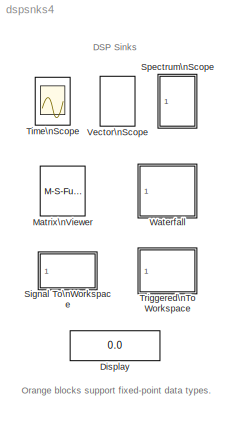
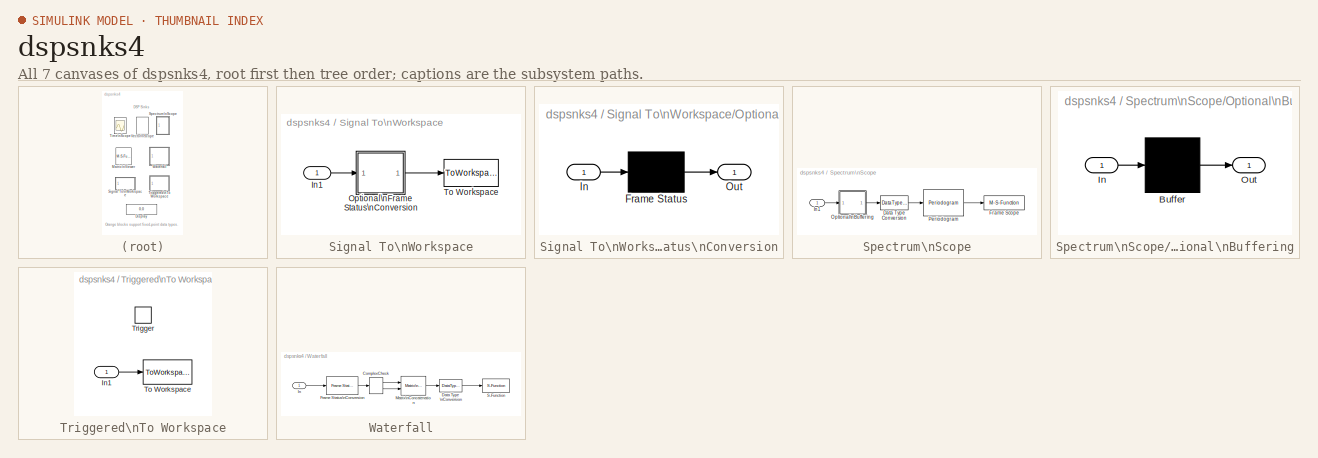
[diagram: thumbnail index - all 7 canvases of the model, root first then tree order]
MODEL dspsnks4
KIND library
BLOCK [Display] Display
  CopyFcn = dspfixptcopycallback
  Decimation = 1
  Ports = [1]
BLOCK [M-S-Function] Matrix\nViewer
  CopyFcn = sdspmview2([],[],[],'BlockCopy');\ndspfixptcopycallback;
  DeleteFcn = sdspmview2([],[],[],'BlockDelete');\ndspblkDDClose;
  MFile = sdspmview2
  MaskCallbackString = ||||||||||||
  MaskDescription = Display a matrix as an image, scaling the colormap to the specified input data range.  Colormap must be an Nx3 matrix of RGB values.  Type \"help graph3d\" at the MATLAB prompt for a list of predefined colormaps.
  MaskDisplay = disp('Matrix\\nViewer')
  MaskEnableString = off,on,on,on,on,on,on,on,on,on,on,on,on
  MaskHelp = web(dspbhelp);
  MaskIconFrame = on
  MaskIconOpaque = on
  MaskIconRotate = none
  MaskIconUnits = autoscale
  MaskInitialization = CMap = CMapStr;\ns = dspblkmview2(ImageParams, CMap, YMin, YMax, AxisColorbar, AxisParams,  AxisOrigin, XLabel,  YLabel,  ZLabel, FigPos, AxisZoom);
  MaskPromptString = dummy|-------------------------------- Show Image properties ------------------------------------|Colormap matrix:|Minimum input value:|Maximum input value:|Display colorbar|-------------------------------- Show axis properties ----------------------------------------|Axis origin:|X-axis title:|Y-axis title:|Colorbar title:|Figure position:|Axis zoom
  MaskSelfModifiable = on
  MaskStyleString = checkbox,checkbox,edit,edit,edit,checkbox,checkbox,popup(Upper left corner|Lower left corner),edit,edit,edit,edit,checkbox
  MaskTabNameString = ,,,,,,,,,,,,
  MaskToolTipString = on,on,on,on,on,on,on,on,on,on,on,on,on
  MaskTunableValueString = on,on,on,on,on,on,on,on,on,on,on,on,on
  MaskType = Matrix Viewer
  MaskValueString = off|off|hot(256)|-1.0|1.0|on|off|Upper left corner|X-axis|Y-axis|Z-axis|get(0,'defaultfigureposition')|off
  MaskVarAliasString = ,,,,,,,,,,,,
  MaskVariables = ShowPortLabels=&1;ImageParams=&2;CMapStr=&3;YMin=@4;YMax=@5;AxisColorbar=&6;AxisParams=&7;AxisOrigin=&8;XLabel=&9;YLabel=&10;ZLabel=&11;FigPos=@12;AxisZoom=&13;
  MaskVisibilityString = off,on,off,off,off,off,on,off,off,off,off,off,off
  NameChangeFcn = sdspmview2([],[],[],'BlockNameChange');
  OpenFcn = dspblkDDOpen('MatrixViewer');
  Ports = [1]
BLOCK [SubSystem] Signal To\nWorkspace
  CopyFcn = dspfixptcopycallback;\ndspblkcopystw(gcbh);
  EnableExecutionContextPropagation = on
  MaskCallbackString = ||||
  MaskDescription = Write input to specified array in MATLAB's main workspace.  Data is not available until the simulation is stopped or paused.
  MaskDisplay = disp(VariableName)
  MaskEnableString = on,on,on,on,on
  MaskHelp = web(dspbhelp);\n
  MaskIconFrame = on
  MaskIconOpaque = on
  MaskIconRotate = none
  MaskIconUnits = autoscale
  MaskInitialization = ConcatFrames = dspblkstw2(FrameMode);\n
  MaskPromptString = Variable name:|Limit data points to last:|Decimation:|Frames:|Log fixed-point data as a fi object
  MaskSelfModifiable = on
  MaskStyleString = edit,edit,edit,popup(Concatenate frames (2-D array)|Log frames separately (3-D array)),checkbox
  MaskTabNameString = ,,,,
  MaskToolTipString = on,on,on,on,on
  MaskTunableValueString = off,off,off,off,off
  MaskType = Signal To Workspace
  MaskValueString = yout|inf|1|Concatenate frames (2-D array)|off
  MaskVarAliasString = ,,,,
  MaskVariables = VariableName=&1;MaxDataPoints=@2;Decimation=@3;FrameMode=@4;FixptAsFi=@5;
  MaskVisibilityString = on,on,on,on,on
  MinAlgLoopOccurrences = off
  Ports = [1]
  TreatAsAtomicUnit = off
BLOCK [Inport] Signal To\nWorkspace/In1
  IconDisplay = Port number
  LatchInput = off
BLOCK [SubSystem] Signal To\nWorkspace/Optional\nFrame Status\nConversion
  EnableExecutionContextPropagation = on
  MaskCallbackString = |||
  MaskDescription = Configurable subsystem holding blocks which may be replaced by virtual short-circuits (muxes) when not needed.
  MaskEnableString = on,on,on,on
  MaskHelp = \n
  MaskIconFrame = on
  MaskIconOpaque = on
  MaskIconRotate = none
  MaskIconUnits = autoscale
  MaskInitialization = opts.name = oname; opts.src = osrc; opts.args = oargs;\ndspskipblk(gcb,opts,replace);\n
  MaskPromptString = Relative name of blocks to replace:|Simulink path to each source block:|Parameter/value pairs to each block:|Replace with short-circuit:
  MaskSelfModifiable = on
  MaskStyleString = edit,edit,edit,edit
  MaskTabNameString = ,,,
  MaskToolTipString = on,on,on,on
  MaskTunableValueString = off,off,off,off
  MaskType = Replaceable Contents
  MaskValueString = Frame Status|dspsigattribs/Frame Status Conversion|{'outframe','Sample-based','growRefPort','off'}|ConcatFrames
  MaskVarAliasString = ,,,
  MaskVariables = oname=&1;osrc=&2;oargs=@3;replace=@4;
  MaskVisibilityString = on,on,on,on
  MinAlgLoopOccurrences = off
  Ports = [1, 1]
  TreatAsAtomicUnit = off
BLOCK [Mux] Signal To\nWorkspace/Optional\nFrame Status\nConversion/Frame Status
  Inputs = 1
  Ports = [1, 1]
BLOCK [Inport] Signal To\nWorkspace/Optional\nFrame Status\nConversion/In
  IconDisplay = Port number
  LatchInput = off
BLOCK [Outport] Signal To\nWorkspace/Optional\nFrame Status\nConversion/Out
  BusOutputAsStruct = off
  IconDisplay = Port number
  InitialOutput = 0
BLOCK [ToWorkspace] Signal To\nWorkspace/To Workspace
  Decimation = Decimation
  MaxDataPoints = MaxDataPoints
  SampleTime = -1
  SaveFormat = Array
  VariableName = yout
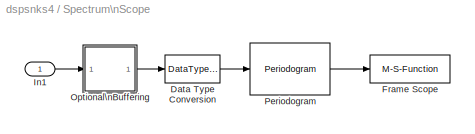
BLOCK [SubSystem] Spectrum\nScope
  CopyFcn = sdspfscope2([],[],[],'BlockCopy');\ndspfixptcopycallback
  DeleteFcn = sdspfscope2([],[],[],'BlockDelete');\ndspblkDDClose;
  EnableExecutionContextPropagation = on
  MaskCallbackString = dspblkbfftscope2('dynamic','ScopeProperties')|||dspblkbfftscope2('dynamic','useBuffer');|||dspblkbfftscope2('dynamic','FftLenCheckbox');|||dspblkbfftscope2('dynamic','DisplayProperties');|||||||dspblkbfftscope2('dynamic','OpenScope');||dspblkbfftscope2('dynamic','AxisProperties');|||dspblkbfftscope2('dynamic','InheritXIncr');|||||||dspblkbfftscope2('dynamic','LineProperties');||||
  MaskDescription = Compute and display the periodogram of each input signal.  Non-frame based inputs to the block should use the buffering option.
  MaskDisplay = plot(x,y); text(14,20,str);\n
  MaskEnableString = on,on,on,on,on,on,on,on,on,on,on,on,on,on,on,on,on,on,on,on,on,on,off,on,on,on,on,on,on,on,on,on,on
  MaskHelp = web(dspbhelp);
  MaskIconFrame = on
  MaskIconOpaque = on
  MaskIconRotate = none
  MaskIconUnits = autoscale
  MaskInitialization = [x,y,str] = dspblkbfftscope2('icon');\ns = dspblkbfftscope2('init');
  MaskPromptString = -------------------------------- Show scope properties ------------------------------------|Input domain:|Time display span (number of frames):|Buffer input|Buffer size:|Buffer overlap:|Specify FFT length|FFT length:|Number of spectral averages:|-------------------------------- Show display properties -----------------------------------|Show grid|Persistence|Frame number|Channel legend|Compact dis...<+513ch>
  MaskSelfModifiable = on
  MaskStyleString = checkbox,popup(Time|Frequency|User-defined),edit,checkbox,edit,edit,checkbox,edit,edit,checkbox,checkbox,checkbox,checkbox,checkbox,checkbox,checkbox,checkbox,edit,checkbox,popup(Hertz|rad/sec),popup([0...Fs/2]|[-Fs/2...Fs/2]|[0...Fs]),checkbox,edit,edit,popup(Magnitude|dB),edit,edit,edit,checkbox,edit,edit,edit,edit
  MaskTabNameString = ,,,,,,,,,,,,,,,,,,,,,,,,,,,,,,,,
  MaskToolTipString = on,on,on,on,on,on,on,on,on,on,on,on,on,on,on,on,on,on,on,on,on,on,on,on,on,on,on,on,on,on,on,on,on
  MaskTunableValueString = on,on,off,off,off,off,off,off,off,on,on,on,on,on,on,on,on,on,on,on,on,on,on,on,on,on,on,on,on,on,on,on,on
  MaskType = Spectrum Scope
  MaskValueString = on|Frequency|1|off|128|64|off|128|2|off|on|off|on|off|off|on|off|get(0,'defaultfigureposition')|off|Hertz|[0...Fs/2]|on|1.0|Samples|dB|-10|10|Magnitude, dB|off||||
  MaskVarAliasString = ,,,,,,,,,,,,,,,,,,,,,,,,,,,,,,,,
  MaskVariables = ScopeProperties=&1;Domain=@2;HorizSpan=@3;UseBuffer=&4;BufferSize=@5;Overlap=@6;inpFftLenInherit=@7;FFTlength=@8;numAvg=@9;DisplayProperties=&10;AxisGrid=&11;Memory=&12;FrameNumber=&13;AxisLegend=&14;AxisZoom=&15;OpenScopeAtSimStart=&16;OpenScopeImmediately=&17;FigPos=@18;AxisProperties=&19;XUnits=@20;XRange=@21;InheritXIncr=&22;XIncr=@23;XLabel=&24;YUnits=@25;YMin=@26;YMax=@27;YLabel=&28;LineProp...<+74ch>
  MaskVisibilityString = on,off,off,on,off,off,on,off,on,on,off,off,off,off,off,off,off,off,on,off,off,off,off,off,off,off,off,off,on,off,off,off,off
  MinAlgLoopOccurrences = off
  NameChangeFcn = sdspfscope2([],[],[],'NameChange');
  OpenFcn = dspblkDDOpen('SpectrumScope');
  Ports = [1]
  RTWSystemCode = Function
  ShowPortLabels = off
  SimViewingDevice = on
  TreatAsAtomicUnit = on
BLOCK [DataTypeConversion] Spectrum\nScope/Data Type Conversion
  OutDataTypeMode = double
BLOCK [M-S-Function] Spectrum\nScope/Frame Scope
  CopyFcn = ;
  MFile = sdspfscope2
  MaskDescription = Level-2 M-file S-function for frame scope.
  MaskDisplay = disp('Frame\\nScope')
  MaskHelp = web(dspbhelp);
  MaskIconFrame = on
  MaskIconOpaque = on
  MaskIconRotate = none
  MaskIconUnits = autoscale
  MaskSelfModifiable = on
  MaskType = Frame Scope
  Parameters = 2
  Ports = [1]
BLOCK [Inport] Spectrum\nScope/In1
  IconDisplay = Port number
  LatchInput = off
BLOCK [SubSystem] Spectrum\nScope/Optional\nBuffering
  EnableExecutionContextPropagation = on
  MaskCallbackString = |||
  MaskDescription = Configurable subsystem holding blocks which may be replaced by virtual short-circuits (muxes) when not needed.
  MaskEnableString = on,on,on,on
  MaskHelp = \n
  MaskIconFrame = on
  MaskIconOpaque = on
  MaskIconRotate = none
  MaskIconUnits = autoscale
  MaskInitialization = opts.name = oname; opts.src = osrc; opts.args = oargs;\ndspskipblk(gcb,opts,replace);\n
  MaskPromptString = Relative name of blocks to replace:|Simulink path to each source block:|Parameter/value pairs to each block:|Replace with short-circuit:
  MaskSelfModifiable = on
  MaskStyleString = edit,edit,edit,edit
  MaskTabNameString = ,,,
  MaskToolTipString = on,on,on,on
  MaskTunableValueString = off,off,off,off
  MaskType = Replaceable Contents
  MaskValueString = Buffer|dspbuff3/Buffer|{'N','BufferSize','V','Overlap','ic','0'}|strcmp(UseBuffer,'off')
  MaskVarAliasString = ,,,
  MaskVariables = oname=&1;osrc=&2;oargs=@3;replace=@4;
  MaskVisibilityString = on,on,on,on
  MinAlgLoopOccurrences = off
  Ports = [1, 1]
  TreatAsAtomicUnit = off
BLOCK [Mux] Spectrum\nScope/Optional\nBuffering/Buffer
  Inputs = 1
  Ports = [1, 1]
BLOCK [Inport] Spectrum\nScope/Optional\nBuffering/In
  IconDisplay = Port number
  LatchInput = off
BLOCK [Outport] Spectrum\nScope/Optional\nBuffering/Out
  BusOutputAsStruct = off
  IconDisplay = Port number
  InitialOutput = 0
BLOCK [Reference] Spectrum\nScope/Periodogram  REF=dspspect3/Periodogram
  Ports = [1, 1]
  Rs = 50
  ShowPortLabels = on
  SourceBlock = dspspect3/Periodogram
  SourceType = Periodogram
  beta = 5
  fftsize = FFTlength
  inheritFFT = on
  navg = numAvg
  winsamp = Periodic
  wintype = Hann
BLOCK [Scope] Time\nScope
  CopyFcn = dspfixptcopycallback
  DataFormat = Structure
  NumInputPorts = 1
  Ports = [1]
BLOCK [SubSystem] Triggered\nTo Workspace
  CopyFcn = dspfixptcopycallback\ndspblkcopystw(gcbh);
  EnableExecutionContextPropagation = on
  MaskCallbackString = ||||
  MaskDescription = Write input to specified variable in the workspace when trigger is received.
  MaskDisplay = disp(VariableName);\n
  MaskEnableString = on,on,on,on,on
  MaskHelp = web(dspbhelp);\n
  MaskIconFrame = on
  MaskIconOpaque = off
  MaskIconRotate = none
  MaskIconUnits = autoscale
  MaskInitialization = dspblktrigtwks('init',TriggerType);
  MaskPromptString = Trigger type:|Variable name:|Maximum number of rows:|Decimation:|Log fixed-point data as a fi object
  MaskSelfModifiable = on
  MaskStyleString = popup(Rising edge|Falling edge|Either edge),edit,edit,edit,checkbox
  MaskTabNameString = ,,,,
  MaskToolTipString = on,on,on,on,on
  MaskTunableValueString = off,off,off,off,off
  MaskType = Triggered To Workspace
  MaskValueString = Rising edge|yout|1000|1|off
  MaskVarAliasString = ,,,,
  MaskVariables = TriggerType=@1;VariableName=&2;Buffer=@3;Decimation=@4;FixptAsFi=@5;
  MaskVisibilityString = on,on,on,on,on
  MinAlgLoopOccurrences = off
  Ports = [1, 0, 0, 1]
  TreatAsAtomicUnit = on
BLOCK [Inport] Triggered\nTo Workspace/In1
  IconDisplay = Port number
  LatchInput = off
BLOCK [ToWorkspace] Triggered\nTo Workspace/To Workspace
  Decimation = Decimation
  MaxDataPoints = Buffer
  SampleTime = -1
  SaveFormat = Array
  VariableName = yout
BLOCK [TriggerPort] Triggered\nTo Workspace/Trigger
  Ports = []
BLOCK [M-S-Function] Vector\nScope
  CopyFcn = sdspfscope2([],[],[],'BlockCopy');\ndspfixptcopycallback
  DeleteFcn = sdspfscope2([],[],[],'BlockDelete');\ndspblkDDClose;
  MFile = sdspfscope2
  MaskCallbackString = |||||||||||||||||||||||||||
  MaskDescription = Display a vector or matrix of time-domain, frequency-domain, or user-specified data.  Each column of a 2-D input matrix is plotted as a separate data channel.  1-D inputs are assumed to be a single data channel.\n\nFor frequency-domain operation, input should come from a source such as the Magnitude FFT block, or a block with equivalent data organization.
  MaskDisplay = plot(x,y); text(14,20,str);\n
  MaskEnableString = on,on,on,on,on,on,on,on,on,on,on,on,on,on,on,on,off,on,on,on,on,on,on,on,on,on,on,on
  MaskHelp = web(dspbhelp);
  MaskIconFrame = on
  MaskIconOpaque = on
  MaskIconRotate = none
  MaskIconUnits = autoscale
  MaskInitialization = [x,y,str] = dspblkfscope2('icon');\ns = dspblkfscope2('init');\n\n
  MaskPromptString = -------------------------------- Show scope properties ------------------------------------|Input domain:|Time display span (number of frames):|-------------------------------- Show display properties -----------------------------------|Show grid|Persistence|Frame number|Channel legend|Compact display|Open scope at start of simulation|Open scope immediately|Scope position:|------------------------...<+419ch>
  MaskSelfModifiable = on
  MaskStyleString = checkbox,popup(Time|Frequency|User-defined),edit,checkbox,checkbox,checkbox,checkbox,checkbox,checkbox,checkbox,checkbox,edit,checkbox,popup(Hertz|rad/sec),popup([0...Fs/2]|[-Fs/2...Fs/2]|[0...Fs]),checkbox,edit,edit,popup(Magnitude|dB),edit,edit,edit,checkbox,edit,edit,edit,edit,checkbox
  MaskTabNameString = ,,,,,,,,,,,,,,,,,,,,,,,,,,,
  MaskToolTipString = on,on,on,on,on,on,on,on,on,on,on,on,on,on,on,on,on,on,on,on,on,on,on,on,on,on,on,on
  MaskTunableValueString = on,on,off,on,on,on,on,on,on,on,on,on,on,on,on,on,on,on,on,on,on,on,on,on,on,on,on,off
  MaskType = Vector Scope
  MaskValueString = on|Time|1|off|on|off|on|off|off|on|off|get(0,'defaultfigureposition')|off|Hertz|[0...Fs/2]|on|1|Time|dB|-10|10|Amplitude|off|||||off
  MaskVarAliasString = ,,,,,,,,,,,,,,,,,,,,,,,,,,,
  MaskVariables = ScopeProperties=&1;Domain=@2;HorizSpan=@3;DisplayProperties=&4;AxisGrid=&5;Memory=&6;FrameNumber=&7;AxisLegend=&8;AxisZoom=&9;OpenScopeAtSimStart=&10;OpenScopeImmediately=&11;FigPos=@12;AxisProperties=&13;XUnits=@14;XRange=@15;InheritXIncr=&16;XIncr=@17;XLabel=&18;YUnits=@19;YMin=@20;YMax=@21;YLabel=&22;LineProperties=&23;LineDisables=&24;LineStyles=&25;LineMarkers=&26;LineColors=&27;ShowPortLabel...<+6ch>
  MaskVisibilityString = on,on,on,on,off,off,off,off,off,off,off,off,on,off,off,off,off,off,off,off,off,off,on,off,off,off,off,on
  NameChangeFcn = sdspfscope2([],[],[],'NameChange');
  OpenFcn = dspblkDDOpen('VectorScope');
  Parameters = 1
  Ports = [1]
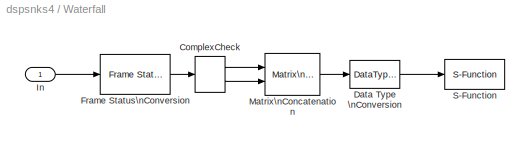
BLOCK [SubSystem] Waterfall
  CopyFcn = sdspwfall([],[],[],'BlockCopy');\ndspfixptcopycallback
  DeleteFcn = sdspwfall([],[],[],'BlockDelete');
  EnableExecutionContextPropagation = on
  ErrorFcn = sdspwfall
  LoadFcn = sdspwfall([],[],[],'BlockLoad');
  MaskCallbackString = dspblkwfall('dynamic','TraceProperties');|||||||||||dspblkwfall('dynamic','DisplayProperties');||||||||||dspblkwfall('dynamic','AxisProperties');|||||||dspblkwfall('dynamic','TriggerProperties');|||||||||||||dspblkwfall('dynamic','XformProperties');|||
  MaskDescription = Display sequence of vectors as a 3-D waterfall plot.  Input must be real-valued.  For matrix inputs, each column of data is treated as a sequential vector input to the waterfall.\n\nColormap must be the name of a MATLAB colormap function, without arguments or parentheses.  Type \"help graph3d\" at the MATLAB prompt for a list of predefined colormaps.
  MaskDisplay = disp('Waterfall<path>,.2,str)\n
  MaskEnableString = on,on,on,on,on,on,on,on,on,on,on,on,on,on,on,on,on,on,on,on,on,on,on,on,on,on,on,on,on,on,on,on,on,on,on,on,on,on,on,on,on,on,on,on,on
  MaskHelp = web(dspbhelp);
  MaskIconFrame = on
  MaskIconOpaque = on
  MaskIconRotate = none
  MaskIconUnits = normalized
  MaskInitialization = if strcmp(Suspend,'on'),\n	str='Suspend';\nelseif strcmp(Snapshot,'on'),\n	str='SnapShot';\nelse\n	str='';\nend\nsdspwfall([],[],[],'DialogApply');\n
  MaskPromptString = -------------------------------- Show waterfall properties ------------------------------------|Number of traces:|Colormap name (jet, hot, etc):|Transparency of newest trace, 0 to 1 (1=opaque):|Transparency of oldest trace, 0 to 1:|History length:|History full:|Display update interval:|Data logging:|MATLAB export variable name:|Automatic export to workspace|-------------------------------- Show di...<+904ch>
  MaskSelfModifiable = on
  MaskStyleString = checkbox,edit,edit,edit,edit,edit,popup(Overwrite|Suspend|Extend),edit,popup(Selected|All visible|All history),edit,checkbox,checkbox,popup(Arrow|Orbit|Zoom),checkbox,checkbox,checkbox,checkbox,checkbox,edit,edit,edit,checkbox,edit,edit,edit,edit,edit,edit,checkbox,popup(Immediately|After T seconds|After N inputs|User-defined),edit,edit,edit,popup(Never|After T seconds|After N inputs|User-defined)...<+276ch>
  MaskTabNameString = ,,,,,,,,,,,,,,,,,,,,,,,,,,,,,,,,,,,,,,,,,,,,
  MaskToolTipString = on,on,on,on,on,on,on,on,on,on,on,on,on,on,on,on,on,on,on,on,on,on,on,on,on,on,on,on,on,on,on,on,on,on,on,on,on,on,on,on,on,on,on,on,on
  MaskTunableValueString = on,on,on,on,on,on,on,on,on,on,on,on,on,on,on,on,on,on,on,on,on,on,on,on,on,on,on,on,on,on,on,on,on,on,on,on,on,on,on,on,on,on,on,on,on
  MaskType = Waterfall
  MaskValueString = off|6|autumn|1|0|10|Overwrite|1|Selected|ExportData|off|off|Orbit|on|off|off|off|on|[243 195 405 320]|[69.4600750684385 564.426060114276 -133.474523953492 0 18.5 3.5 0.616338299486424 -7.9078811427274 1.98411164834144 2.40985953613679 1 18.5 3]|[32 1]|off|-1|1|'w'|Amplitude|Samples|Time|off|Immediately|0|0|trigbegin|Never|0.1|1|trigend|Never|0|0|trigrearm|on|None|abs|(u+1)/2
  MaskVarAliasString = ,,,,,,,,,,,,,,,,,,,,,,,,,,,,,,,,,,,,,,,,,,,,
  MaskVariables = TraceProperties=&1;NumTraces=@2;CMapStr=&3;TNewest=@4;TOldest=@5;HistoryLength=@6;HistoryFull=&7;UpdateInterval=@8;ExportMode=&9;MLExportName=&10;AutoExport=@11;DisplayProperties=&12;MouseMode=&13;AxisGrid=&14;Snapshot=&15;Suspend=&16;SyncSnapshots=@17;OpenScopeAtSimStart=@18;FigPos=@19;CameraView=@20;InportDimsHint=@21;AxisProperties=&22;YMin=@23;YMax=@24;AxisColor=&25;XLabel=&26;YLabel=&27;ZLabe...<+280ch>
  MaskVisibilityString = on,off,off,off,off,off,off,off,off,off,off,on,off,off,off,off,off,off,off,off,off,on,off,off,off,off,off,off,on,off,off,off,off,off,off,off,off,off,off,off,off,on,on,on,on
  MinAlgLoopOccurrences = off
  NameChangeFcn = sdspwfall([],[],[],'BlockNameChange');
  OpenFcn = sdspwfall([],[],[],'BlockOpen');
  Ports = [1]
  RTWSystemCode = Function
  ShowPortLabels = off
  SimViewingDevice = on
  TreatAsAtomicUnit = on
  UndoDeleteFcn = sdspwfall([],[],[],'BlockUndoDelete');
BLOCK [ComplexToRealImag] Waterfall/ComplexCheck
  Output = Real and imag
  Ports = [1, 2]
BLOCK [DataTypeConversion] Waterfall/Data Type \nConversion
  OutDataTypeMode = double
BLOCK [Reference] Waterfall/Frame Status\nConversion  REF=dspsigattribs/Frame Status\nConversion
  Ports = [1, 1]
  SourceBlock = dspsigattribs/Frame Status\nConversion
  SourceType = Frame Status Conversion
  growRefPort = off
  outframe = Sample-based
BLOCK [Inport] Waterfall/In
  IconDisplay = Port number
  LatchInput = off
BLOCK [Reference] Waterfall/Matrix\nConcatenation  REF=simulink/Math\nOperations/Matrix\nConcatenation
  Ports = [2, 1]
  SourceBlock = simulink/Math\nOperations/Matrix\nConcatenation
  SourceType = Matrix Concatenation
  catMethod = Vertical
  numInports = 2
BLOCK [S-Function] Waterfall/S-Function
  FunctionName = sdspwfall
  Ports = [1]
ANNOTATION (root): DSP Sinks
ANNOTATION (root): Orange blocks support fixed-point data types.
LINE Signal To\nWorkspace/In1:1 -> Signal To\nWorkspace/Optional\nFrame Status\nConversion:1
LINE Signal To\nWorkspace/Optional\nFrame Status\nConversion/Frame Status:1 -> Signal To\nWorkspace/Optional\nFrame Status\nConversion/Out:1
LINE Signal To\nWorkspace/Optional\nFrame Status\nConversion/In:1 -> Signal To\nWorkspace/Optional\nFrame Status\nConversion/Frame Status:1
LINE Signal To\nWorkspace/Optional\nFrame Status\nConversion:1 -> Signal To\nWorkspace/To Workspace:1
LINE Spectrum\nScope/Data Type Conversion:1 -> Spectrum\nScope/Periodogram:1
LINE Spectrum\nScope/In1:1 -> Spectrum\nScope/Optional\nBuffering:1
LINE Spectrum\nScope/Optional\nBuffering/Buffer:1 -> Spectrum\nScope/Optional\nBuffering/Out:1
LINE Spectrum\nScope/Optional\nBuffering/In:1 -> Spectrum\nScope/Optional\nBuffering/Buffer:1
LINE Spectrum\nScope/Optional\nBuffering:1 -> Spectrum\nScope/Data Type Conversion:1
LINE Spectrum\nScope/Periodogram:1 -> Spectrum\nScope/Frame Scope:1
LINE Triggered\nTo Workspace/In1:1 -> Triggered\nTo Workspace/To Workspace:1
LINE Waterfall/ComplexCheck:1 -> Waterfall/Matrix\nConcatenation:1
LINE Waterfall/ComplexCheck:2 -> Waterfall/Matrix\nConcatenation:2
LINE Waterfall/Data Type \nConversion:1 -> Waterfall/S-Function:1
LINE Waterfall/Frame Status\nConversion:1 -> Waterfall/ComplexCheck:1
LINE Waterfall/In:1 -> Waterfall/Frame Status\nConversion:1
LINE Waterfall/Matrix\nConcatenation:1 -> Waterfall/Data Type \nConversion:1
note: 1 file-system path scrubbed to <path> (not preserved elsewhere — flat text is the only slx artifact)
